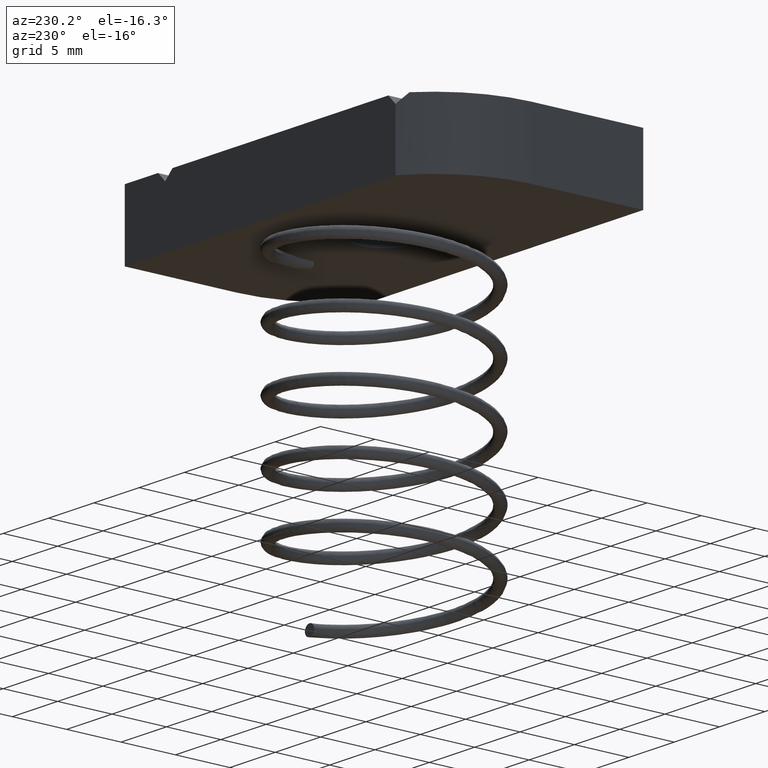
[diagram: clean part render]
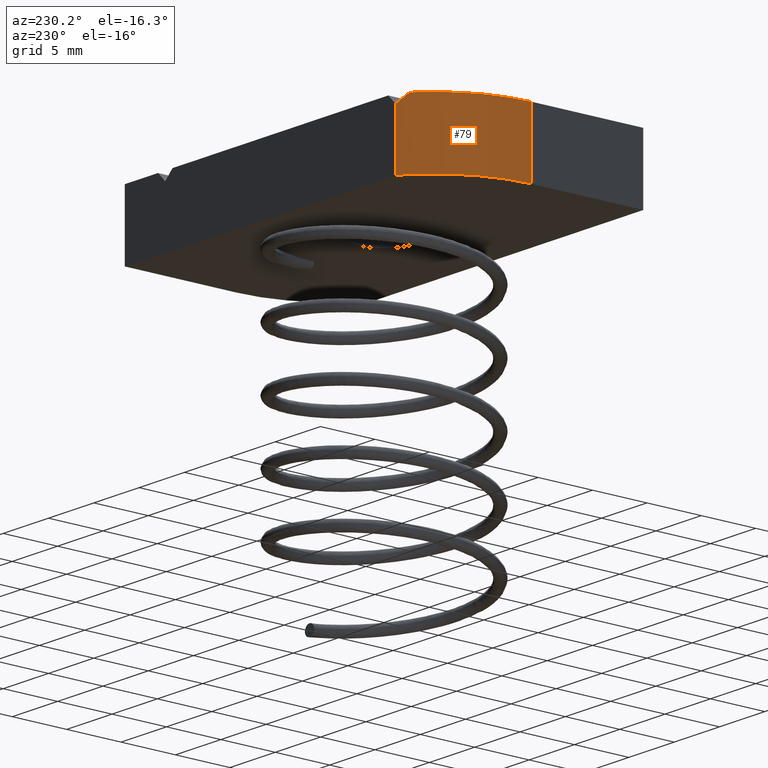
[diagram: same view with one face highlighted and labeled with its STEP entity id]
A machine part, auxiliary view. The second image highlights one B-rep face of the part: STEP entity #79.
In plain terms, the highlighted cylindrical surface (partial cylindrical patch) has radius 10.7742 mm, axis along (-0, -0, -1).
Its self-contained STEP definition (entity closure, byte-faithful):
#5 = ORIENTED_EDGE ( 'NONE', *, *, #2649, .T. ) ;
#31 = ORIENTED_EDGE ( 'NONE', *, *, #98, .F. ) ;
#47 = ORIENTED_EDGE ( 'NONE', *, *, #104, .T. ) ;
#55 = ORIENTED_EDGE ( 'NONE', *, *, #105, .F. ) ;
#79 = ADVANCED_FACE ( 'NONE', ( #239 ), #243, .T. ) ;
#90 = EDGE_CURVE ( 'NONE', #2600, #2601, #2514, .T. ) ;
#98 = EDGE_CURVE ( 'NONE', #2587, #2582, #257, .T. ) ;
#104 = EDGE_CURVE ( 'NONE', #2565, #2582, #1994, .T. ) ;
#105 = EDGE_CURVE ( 'NONE', #2600, #2587, #1996, .T. ) ;
#124 = AXIS2_PLACEMENT_3D ( 'NONE', #192, #182, #156 ) ;
#156 = DIRECTION ( 'NONE',  ( -1.000000000000000000, 0.0000000000000000000, 0.0000000000000000000 ) ) ;
#182 = DIRECTION ( 'NONE',  ( -0.0000000000000000000, -0.0000000000000000000, -1.000000000000000000 ) ) ;
#192 = CARTESIAN_POINT ( 'NONE',  ( -0.2518181818181817700, 0.03100000000000002400, 0.1189999999999999900 ) ) ;
#207 = LINE ( 'NONE', #1100, #210 ) ;
#210 = VECTOR ( 'NONE', #1101, 39.37007874015748100 ) ;
#239 = FACE_OUTER_BOUND ( 'NONE', #1152, .T. ) ;
#243 = CYLINDRICAL_SURFACE ( 'NONE', #124, 0.4241818181818182200 ) ;
#257 = LINE ( 'NONE', #850, #259 ) ;
#259 = VECTOR ( 'NONE', #991, 39.37007874015748100 ) ;
#672 = CARTESIAN_POINT ( 'NONE',  ( -0.5312499999999996700, 0.3501364502272289500, 0.1189999999999999900 ) ) ;
#679 = CARTESIAN_POINT ( 'NONE',  ( -0.5212276018830123100, 0.3589119345894124500, 0.1089776018830125700 ) ) ;
#680 = CARTESIAN_POINT ( 'NONE',  ( -0.5108032315010988500, 0.3672059138483088100, 0.09855323150109901500 ) ) ;
#681 = CARTESIAN_POINT ( 'NONE',  ( -0.5000000000000000000, 0.3750000000000000600, 0.08774999999999996700 ) ) ;
#850 = CARTESIAN_POINT ( 'NONE',  ( -0.6759999999999999300, 0.03100000000000002400, 0.1189999999999999900 ) ) ;
#991 = DIRECTION ( 'NONE',  ( -0.0000000000000000000, -0.0000000000000000000, -1.000000000000000000 ) ) ;
#1001 = CARTESIAN_POINT ( 'NONE',  ( -0.2518181818181817700, 0.03100000000000002400, 0.1189999999999999900 ) ) ;
#1003 = CARTESIAN_POINT ( 'NONE',  ( -0.2518181818181817700, 0.03100000000000002400, -0.1189999999999999900 ) ) ;
#1005 = DIRECTION ( 'NONE',  ( 0.0000000000000000000, 0.0000000000000000000, 1.000000000000000000 ) ) ;
#1006 = DIRECTION ( 'NONE',  ( -1.000000000000000000, 0.0000000000000000000, 0.0000000000000000000 ) ) ;
#1008 = DIRECTION ( 'NONE',  ( 0.0000000000000000000, 0.0000000000000000000, 1.000000000000000000 ) ) ;
#1009 = DIRECTION ( 'NONE',  ( -1.000000000000000000, 0.0000000000000000000, 0.0000000000000000000 ) ) ;
#1072 = CARTESIAN_POINT ( 'NONE',  ( -0.5000000000000000000, 0.3750000000000000600, -0.1189999999999999900 ) ) ;
#1081 = CARTESIAN_POINT ( 'NONE',  ( -0.6759999999999999300, 0.03100000000000002400, -0.1189999999999999900 ) ) ;
#1085 = CARTESIAN_POINT ( 'NONE',  ( -0.6759999999999999300, 0.03100000000000002400, 0.1189999999999999900 ) ) ;
#1093 = CARTESIAN_POINT ( 'NONE',  ( -0.5312499999999996700, 0.3501364502272289500, 0.1189999999999999900 ) ) ;
#1094 = CARTESIAN_POINT ( 'NONE',  ( -0.5000000000000000000, 0.3750000000000000600, 0.08774999999999996700 ) ) ;
#1100 = CARTESIAN_POINT ( 'NONE',  ( -0.5000000000000000000, 0.3750000000000000600, 0.1189999999999999900 ) ) ;
#1101 = DIRECTION ( 'NONE',  ( -0.0000000000000000000, -0.0000000000000000000, -1.000000000000000000 ) ) ;
#1152 = EDGE_LOOP ( 'NONE', ( #55, #2045, #5, #47, #31 ) ) ;
#1994 = CIRCLE ( 'NONE', #2523, 0.4241818181818182200 ) ;
#1996 = CIRCLE ( 'NONE', #2527, 0.4241818181818182200 ) ;
#2045 = ORIENTED_EDGE ( 'NONE', *, *, #90, .T. ) ;
#2514 =( BOUNDED_CURVE ( )  B_SPLINE_CURVE ( 3, ( #672, #679, #680, #681 ),
 .UNSPECIFIED., .F., .T. ) 
 B_SPLINE_CURVE_WITH_KNOTS ( ( 4, 4 ),
 ( 3.993226455637453900, 4.087405860915651200 ),
 .UNSPECIFIED. ) 
 CURVE ( )  GEOMETRIC_REPRESENTATION_ITEM ( )  RATIONAL_B_SPLINE_CURVE ( ( 1.000000000000000000, 0.9992609898761521900, 0.9992609898761521900, 1.000000000000000000 ) ) 
 REPRESENTATION_ITEM ( '' )  );
#2523 = AXIS2_PLACEMENT_3D ( 'NONE', #1003, #1005, #1006 ) ;
#2527 = AXIS2_PLACEMENT_3D ( 'NONE', #1001, #1008, #1009 ) ;
#2565 = VERTEX_POINT ( 'NONE', #1072 ) ;
#2582 = VERTEX_POINT ( 'NONE', #1081 ) ;
#2587 = VERTEX_POINT ( 'NONE', #1085 ) ;
#2600 = VERTEX_POINT ( 'NONE', #1093 ) ;
#2601 = VERTEX_POINT ( 'NONE', #1094 ) ;
#2649 = EDGE_CURVE ( 'NONE', #2601, #2565, #207, .T. ) ;